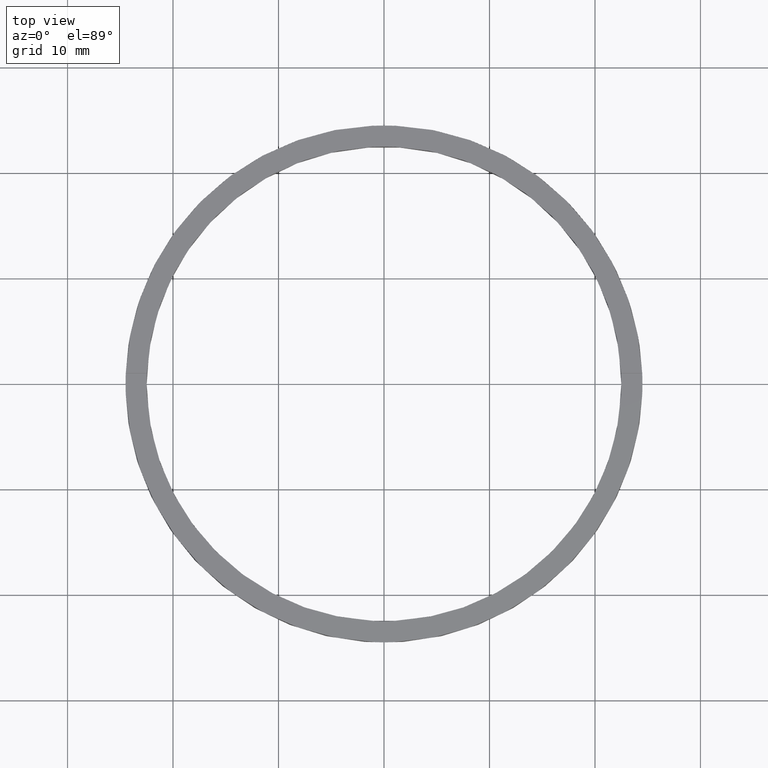
[diagram: clean part render]
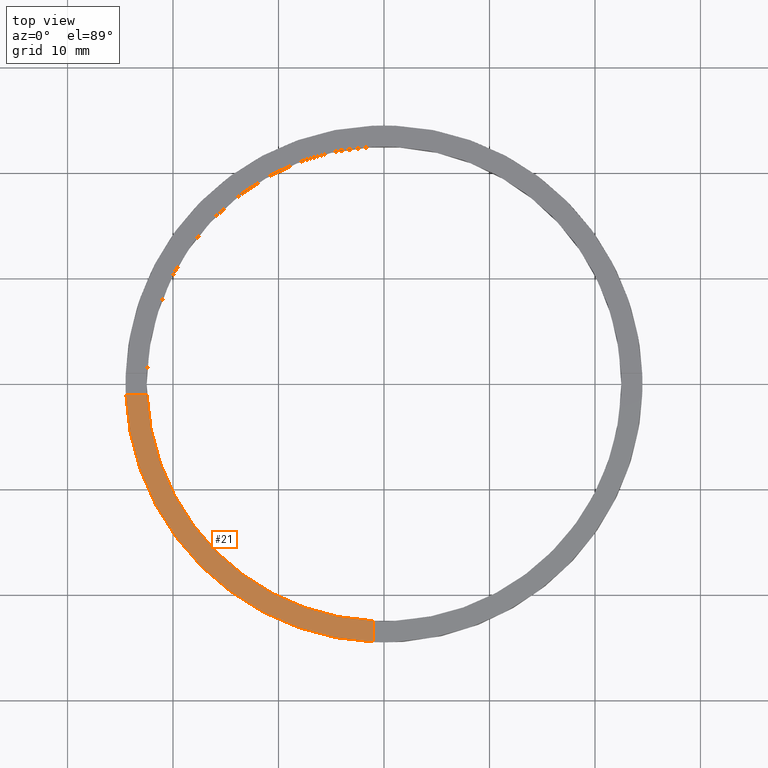
[diagram: same view with one face highlighted and labeled with its STEP entity id]
A machine part, top view. The second image highlights one B-rep face of the part: STEP entity #21.
In plain terms, the highlighted planar face has unit normal (0, 0, 1).
Its self-contained STEP definition (entity closure, byte-faithful):
#21 = ADVANCED_FACE ( 'NONE', ( #374 ), #75, .T. ) ;
#25 = AXIS2_PLACEMENT_3D ( 'NONE', #305, #554, #57 ) ;
#40 = ORIENTED_EDGE ( 'NONE', *, *, #736, .F. ) ;
#57 = DIRECTION ( 'NONE',  ( 1.000000000000000000, 0.000000000000000000, 0.000000000000000000 ) ) ;
#75 = PLANE ( 'NONE',  #521 ) ;
#114 = ORIENTED_EDGE ( 'NONE', *, *, #681, .F. ) ;
#116 = CARTESIAN_POINT ( 'NONE',  ( -1.000000000000160760, -24.47958332978728890, 2.500000000000000000 ) ) ;
#117 = VERTEX_POINT ( 'NONE', #320 ) ;
#149 = CIRCLE ( 'NONE', #25, 24.50000000000000000 ) ;
#152 = DIRECTION ( 'NONE',  ( 0.000000000000000000, 0.000000000000000000, 1.000000000000000000 ) ) ;
#163 = EDGE_CURVE ( 'NONE', #328, #621, #149, .T. ) ;
#184 = LINE ( 'NONE', #751, #191 ) ;
#191 = VECTOR ( 'NONE', #749, 1000.000000000000000 ) ;
#211 = CIRCLE ( 'NONE', #344, 22.50000000000000355 ) ;
#234 = VERTEX_POINT ( 'NONE', #676 ) ;
#288 = DIRECTION ( 'NONE',  ( 0.000000000000000000, 0.000000000000000000, 1.000000000000000000 ) ) ;
#302 = ORIENTED_EDGE ( 'NONE', *, *, #551, .F. ) ;
#305 = CARTESIAN_POINT ( 'NONE',  ( 0.000000000000000000, 0.000000000000000000, 2.500000000000000000 ) ) ;
#320 = CARTESIAN_POINT ( 'NONE',  ( -1.000000000000161204, -22.47776679298901925, 2.500000000000000000 ) ) ;
#323 = DIRECTION ( 'NONE',  ( 1.000000000000000000, 0.000000000000000000, 0.000000000000000000 ) ) ;
#328 = VERTEX_POINT ( 'NONE', #737 ) ;
#344 = AXIS2_PLACEMENT_3D ( 'NONE', #626, #152, #323 ) ;
#374 = FACE_OUTER_BOUND ( 'NONE', #613, .T. ) ;
#436 = LINE ( 'NONE', #656, #700 ) ;
#521 = AXIS2_PLACEMENT_3D ( 'NONE', #622, #288, #694 ) ;
#551 = EDGE_CURVE ( 'NONE', #117, #621, #436, .T. ) ;
#554 = DIRECTION ( 'NONE',  ( 0.000000000000000000, 0.000000000000000000, 1.000000000000000000 ) ) ;
#613 = EDGE_LOOP ( 'NONE', ( #302, #40, #114, #762 ) ) ;
#621 = VERTEX_POINT ( 'NONE', #116 ) ;
#622 = CARTESIAN_POINT ( 'NONE',  ( 0.000000000000000000, 0.000000000000000000, 2.500000000000000000 ) ) ;
#626 = CARTESIAN_POINT ( 'NONE',  ( 0.000000000000000000, 0.000000000000000000, 2.500000000000000000 ) ) ;
#656 = CARTESIAN_POINT ( 'NONE',  ( -1.000000000000162093, -14.50000000000018119, 2.500000000000000000 ) ) ;
#676 = CARTESIAN_POINT ( 'NONE',  ( -22.47776679298902636, -1.000000000000025313, 2.500000000000000000 ) ) ;
#681 = EDGE_CURVE ( 'NONE', #328, #234, #184, .T. ) ;
#694 = DIRECTION ( 'NONE',  ( 1.000000000000000000, 0.000000000000000000, -0.000000000000000000 ) ) ;
#700 = VECTOR ( 'NONE', #739, 1000.000000000000000 ) ;
#736 = EDGE_CURVE ( 'NONE', #234, #117, #211, .T. ) ;
#737 = CARTESIAN_POINT ( 'NONE',  ( -24.47958332978729601, -1.000000000000025757, 2.500000000000000000 ) ) ;
#739 = DIRECTION ( 'NONE',  ( 1.301042606982605321E-16, -1.000000000000000000, 0.000000000000000000 ) ) ;
#749 = DIRECTION ( 'NONE',  ( 1.000000000000000000, 1.734723475976807341E-16, -0.000000000000000000 ) ) ;
#751 = CARTESIAN_POINT ( 'NONE',  ( -14.50000000000018652, -1.000000000000023981, 2.500000000000000000 ) ) ;
#762 = ORIENTED_EDGE ( 'NONE', *, *, #163, .T. ) ;